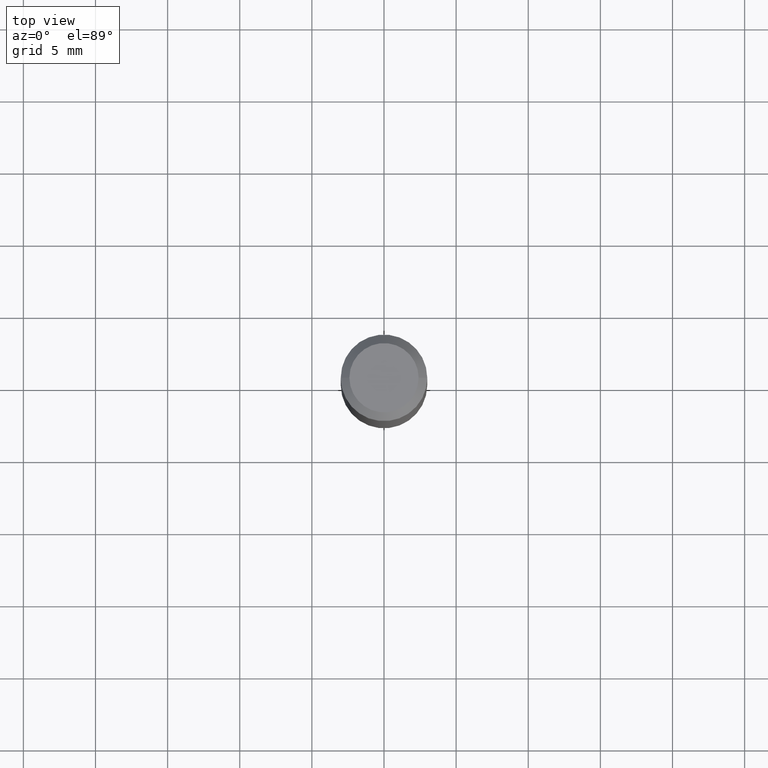
[diagram: clean part render]
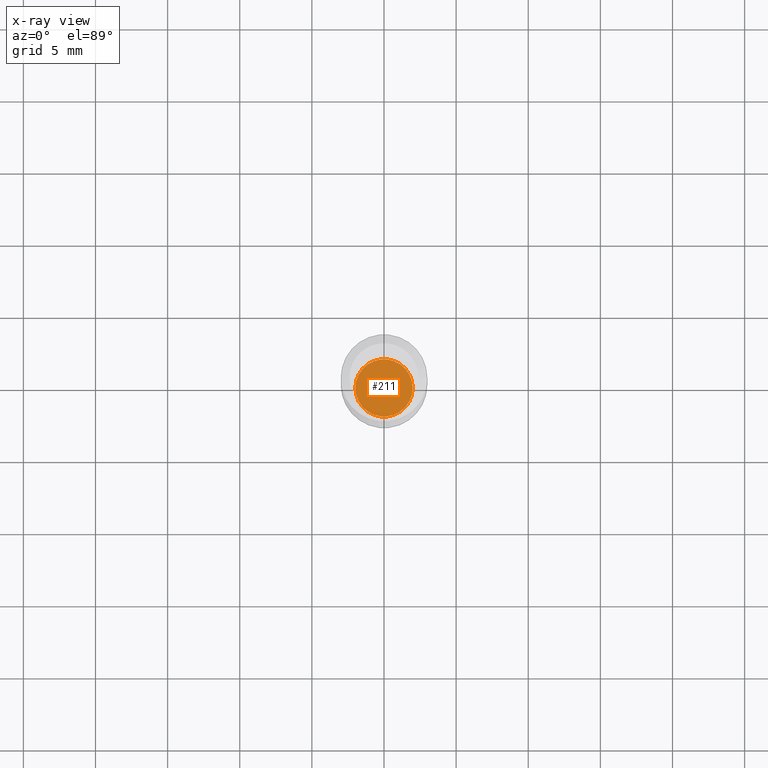
[diagram: x-ray — body ghosted, one internal face saturated and labeled with its STEP entity id]
A machine part, top view, then the same camera in x-ray: the body is ghosted and one INTERNAL B-rep face — a face not visible from any outside direction — is saturated and labeled: STEP entity #211.
In plain terms, the highlighted planar face has unit normal (-0, 0, 1).
Its self-contained STEP definition (entity closure, byte-faithful):
#9 = VERTEX_POINT ( 'NONE', #255 ) ;
#115 = PLANE ( 'NONE',  #426 ) ;
#119 = CIRCLE ( 'NONE', #444, 0.07825000000000000011 ) ;
#126 = DIRECTION ( 'NONE',  ( -2.445468806185136597E-29, 3.491481338843145583E-15, 1.000000000000000000 ) ) ;
#154 = DIRECTION ( 'NONE',  ( 1.000000000000000000, -6.982962677686265922E-15, 4.876176775795935793E-29 ) ) ;
#158 = ORIENTED_EDGE ( 'NONE', *, *, #502, .F. ) ;
#164 = CARTESIAN_POINT ( 'NONE',  ( 3.948209387585902623E-29, -5.636996621562256693E-15, -1.614499999999999602 ) ) ;
#166 = CARTESIAN_POINT ( 'NONE',  ( 3.948209387585902623E-29, -5.636996621562256693E-15, -1.614499999999999602 ) ) ;
#185 = FACE_OUTER_BOUND ( 'NONE', #279, .T. ) ;
#194 = CARTESIAN_POINT ( 'NONE',  ( 7.884162847242652072E-29, -4.872467750967618044E-19, -1.614500000000000046 ) ) ;
#196 = ORIENTED_EDGE ( 'NONE', *, *, #491, .F. ) ;
#211 = ADVANCED_FACE ( 'NONE', ( #185 ), #115, .F. ) ;
#255 = CARTESIAN_POINT ( 'NONE',  ( 0.07825000000000000011, -6.183413451091207821E-15, -1.614499999999999602 ) ) ;
#264 = DIRECTION ( 'NONE',  ( -2.438088387897960049E-29, 3.491481338843145188E-15, 1.000000000000000000 ) ) ;
#279 = EDGE_LOOP ( 'NONE', ( #158, #196 ) ) ;
#281 = DIRECTION ( 'NONE',  ( -2.445468806185136597E-29, 3.491481338843145583E-15, 1.000000000000000000 ) ) ;
#294 = CIRCLE ( 'NONE', #330, 0.07825000000000000011 ) ;
#325 = VERTEX_POINT ( 'NONE', #467 ) ;
#330 = AXIS2_PLACEMENT_3D ( 'NONE', #164, #281, #360 ) ;
#360 = DIRECTION ( 'NONE',  ( 1.000000000000000000, -6.982962677686267499E-15, 0.000000000000000000 ) ) ;
#426 = AXIS2_PLACEMENT_3D ( 'NONE', #194, #264, #154 ) ;
#443 = DIRECTION ( 'NONE',  ( 1.000000000000000000, -6.982962677686267499E-15, 0.000000000000000000 ) ) ;
#444 = AXIS2_PLACEMENT_3D ( 'NONE', #166, #126, #443 ) ;
#467 = CARTESIAN_POINT ( 'NONE',  ( -0.07825000000000000011, -5.078347703655868378E-15, -1.614499999999999602 ) ) ;
#491 = EDGE_CURVE ( 'NONE', #325, #9, #294, .T. ) ;
#502 = EDGE_CURVE ( 'NONE', #9, #325, #119, .T. ) ;